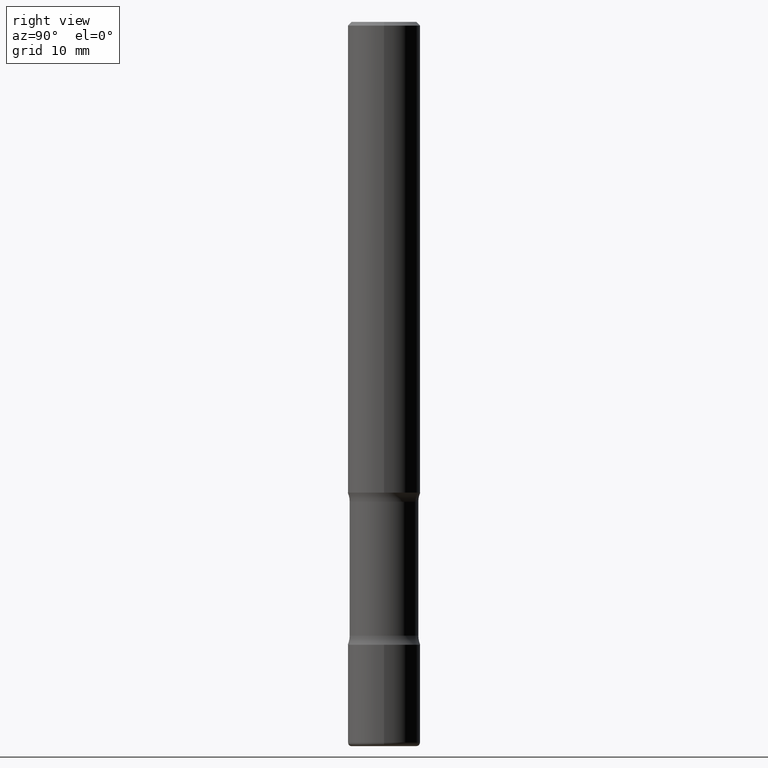
[diagram: clean part render]
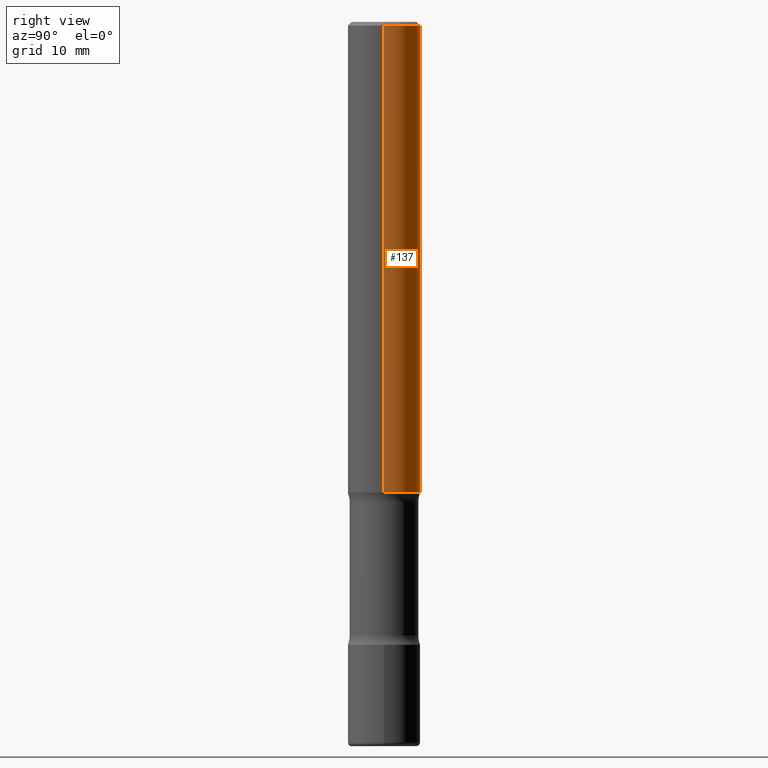
[diagram: same view with one face highlighted and labeled with its STEP entity id]
A machine part, right view. The second image highlights one B-rep face of the part: STEP entity #137.
In plain terms, the highlighted cylindrical surface (edge-blend (fillet) strip) has radius 5 mm, axis along (-0, 0, 1).
Its self-contained STEP definition (entity closure, byte-faithful):
#4 = EDGE_CURVE ( 'NONE', #239, #316, #139, .T. ) ;
#12 = AXIS2_PLACEMENT_3D ( 'NONE', #107, #404, #533 ) ;
#16 = CARTESIAN_POINT ( 'NONE',  ( -0.1968499999999998307, 1.304766576325677324E-15, -0.02000000000000006981 ) ) ;
#50 = DIRECTION ( 'NONE',  ( -2.445468806185136597E-29, 3.491481338843145583E-15, 1.000000000000000000 ) ) ;
#86 = CARTESIAN_POINT ( 'NONE',  ( -0.1968500000000001082, -3.103561811094476227E-15, -2.559000000000000163 ) ) ;
#89 = AXIS2_PLACEMENT_3D ( 'NONE', #133, #386, #501 ) ;
#107 = CARTESIAN_POINT ( 'NONE',  ( 0.000000000000000000, 0.000000000000000000, 0.000000000000000000 ) ) ;
#115 = VECTOR ( 'NONE', #469, 39.37007874015748143 ) ;
#119 = EDGE_CURVE ( 'NONE', #239, #194, #462, .T. ) ;
#122 = VERTEX_POINT ( 'NONE', #16 ) ;
#133 = CARTESIAN_POINT ( 'NONE',  ( 6.257954675027765161E-29, -8.934700746099610252E-15, -2.559000000000000163 ) ) ;
#137 = ADVANCED_FACE ( 'NONE', ( #477 ), #532, .T. ) ;
#139 = CIRCLE ( 'NONE', #89, 0.1968500000000001082 ) ;
#166 = ORIENTED_EDGE ( 'NONE', *, *, #119, .F. ) ;
#194 = VERTEX_POINT ( 'NONE', #372 ) ;
#210 = CARTESIAN_POINT ( 'NONE',  ( 0.1968500000000001082, -1.030929694920215344E-14, -2.559000000000000163 ) ) ;
#239 = VERTEX_POINT ( 'NONE', #210 ) ;
#305 = CARTESIAN_POINT ( 'NONE',  ( 0.1968499999999999694, -1.374596203102541411E-15, 9.598753983154298056E-30 ) ) ;
#307 = AXIS2_PLACEMENT_3D ( 'NONE', #399, #50, #394 ) ;
#316 = VERTEX_POINT ( 'NONE', #86 ) ;
#371 = CARTESIAN_POINT ( 'NONE',  ( -0.1968499999999999694, 1.398703375343756999E-15, -9.682923725166782276E-30 ) ) ;
#372 = CARTESIAN_POINT ( 'NONE',  ( 0.1968499999999998307, -1.420318657638187938E-15, -0.02000000000000006981 ) ) ;
#386 = DIRECTION ( 'NONE',  ( -2.445468806185136597E-29, 3.491481338843145583E-15, 1.000000000000000000 ) ) ;
#392 = EDGE_CURVE ( 'NONE', #316, #122, #528, .T. ) ;
#394 = DIRECTION ( 'NONE',  ( 1.000000000000000000, -6.982962677686266711E-15, 0.000000000000000000 ) ) ;
#399 = CARTESIAN_POINT ( 'NONE',  ( 4.890937612370289799E-31, -6.982962677686315028E-17, -0.02000000000000006981 ) ) ;
#404 = DIRECTION ( 'NONE',  ( -2.445468806185136597E-29, 3.491481338843145583E-15, 1.000000000000000000 ) ) ;
#408 = ORIENTED_EDGE ( 'NONE', *, *, #4, .T. ) ;
#444 = ORIENTED_EDGE ( 'NONE', *, *, #445, .F. ) ;
#445 = EDGE_CURVE ( 'NONE', #194, #122, #474, .T. ) ;
#462 = LINE ( 'NONE', #305, #115 ) ;
#469 = DIRECTION ( 'NONE',  ( -2.445468806185136877E-29, 3.491481338843145188E-15, 1.000000000000000000 ) ) ;
#471 = ORIENTED_EDGE ( 'NONE', *, *, #392, .T. ) ;
#472 = DIRECTION ( 'NONE',  ( -2.445468806185136877E-29, 3.491481338843145188E-15, 1.000000000000000000 ) ) ;
#474 = CIRCLE ( 'NONE', #307, 0.1968499999999998307 ) ;
#477 = FACE_OUTER_BOUND ( 'NONE', #484, .T. ) ;
#484 = EDGE_LOOP ( 'NONE', ( #408, #471, #444, #166 ) ) ;
#501 = DIRECTION ( 'NONE',  ( 1.000000000000000000, -6.982962677686265133E-15, 0.000000000000000000 ) ) ;
#511 = VECTOR ( 'NONE', #472, 39.37007874015748143 ) ;
#528 = LINE ( 'NONE', #371, #511 ) ;
#532 = CYLINDRICAL_SURFACE ( 'NONE', #12, 0.1968499999999999694 ) ;
#533 = DIRECTION ( 'NONE',  ( 1.000000000000000000, -6.982962677686266711E-15, 4.876176775795935793E-29 ) ) ;